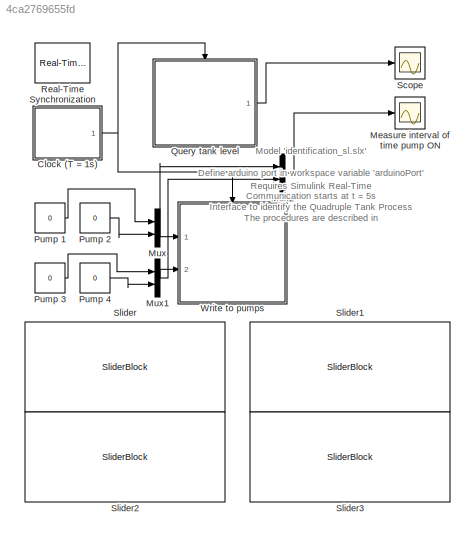
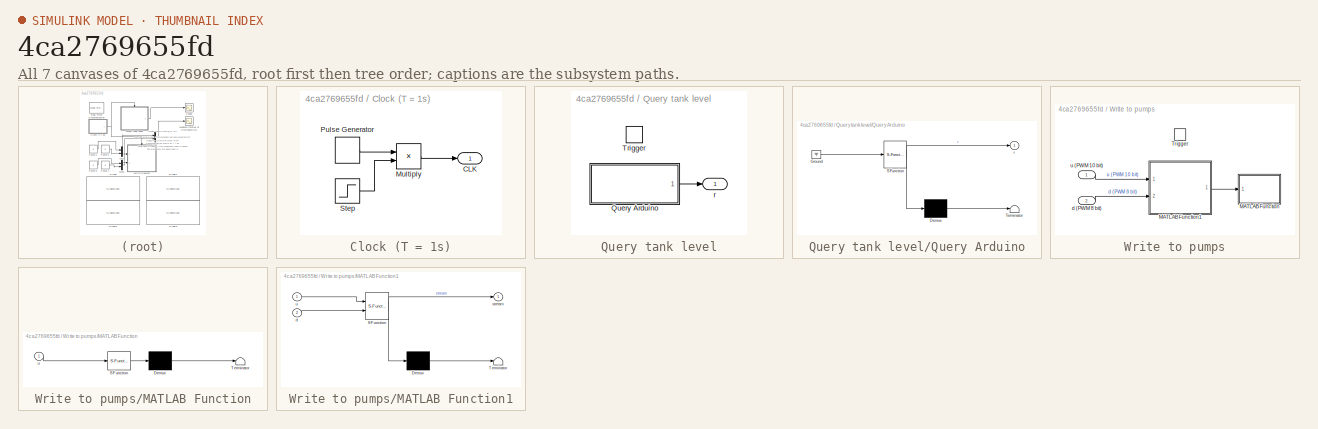
[diagram: thumbnail index - all 7 canvases of the model, root first then tree order]
MODEL slx_4ca2769655fd
KIND model
CONFIG AbsTol = auto
CONFIG EnableMultiTasking = off
CONFIG FixedStep = 0.5
CONFIG MaxStep = auto
CONFIG MinStep = auto
CONFIG RelTol = 1e-3
CONFIG SampleTimeConstraint = Unconstrained
CONFIG SolverName = FixedStepDiscrete
CONFIG StartTime = 0.0
CONFIG StopTime = inf
BLOCK [SubSystem] Clock (T = 1s)
  Ports = [0, 1]
  RequestExecContextInheritance = off
BLOCK [Outport] Clock (T = 1s)/CLK 
  VectorParamsAs1DForOutWhenUnconnected = off
BLOCK [Product] Clock (T = 1s)/Multiply
  Ports = [2, 1]
BLOCK [DiscretePulseGenerator] Clock (T = 1s)/Pulse Generator
  Period = 1
  Ports = [0, 1]
  PulseType = Time based
  PulseWidth = 50
BLOCK [Step] Clock (T = 1s)/Step
  SampleTime = 0
  Time = 5
BLOCK [Scope] Measure interval of time pump ON
  Floating = off
  NumInputPorts = 1
  Ports = [1]
  ScopeSpecificationString = Simulink.scopes.TimeScopeBlockCfg('CurrentConfiguration', extmgr.ConfigurationSet(extmgr.Configuration('Core','General UI',true),extmgr.Configuration('Core','Source UI',true),extmgr.Configuration('Sources','WiredSimulink',true,'DataLoggingVariableName','ScopeData1'),extmgr.Configuration('Visuals','Time Domain',true,'SerializedDisplays',{struct('MinYLimReal','-20','MaxYLimReal','1040','YLabelReal',...<+1852ch>
BLOCK [Mux] Mux
  DisplayOption = bar
  Inputs = 2
  Ports = [2, 1]
BLOCK [Mux] Mux1
  DisplayOption = bar
  Inputs = 2
  Ports = [2, 1]
BLOCK [Mux] Mux2
  DisplayOption = bar
  Inputs = 2
  Ports = [2, 1]
BLOCK [Constant] Pump 1
  Value = 0
BLOCK [Constant] Pump 2 
  Value = 0
BLOCK [Constant] Pump 3
  Value = 0
BLOCK [Constant] Pump 4
  Value = 0
BLOCK [SubSystem] Query tank level
  InitFcn = if exist('arduinoPort')\nif ~isempty(instrfind)\nfclose(instrfind);\ndelete(instrfind);\nend\narduino = serial(arduinoPort,...\n                'BaudRate',9600,...\n                'ByteOrder','bigEndian',...\n                'DataBits',8,...\n                'StopBits',1,...\n                'Terminator','');\narduino.Parity = 'none';\nfopen(arduino);\nelse\nerror("Error: Arduino port undefined. Define the por...<+45ch>
  Ports = [0, 1, 0, 1]
  Priority = 1
  RequestExecContextInheritance = off
  StopFcn = fclose(arduino)
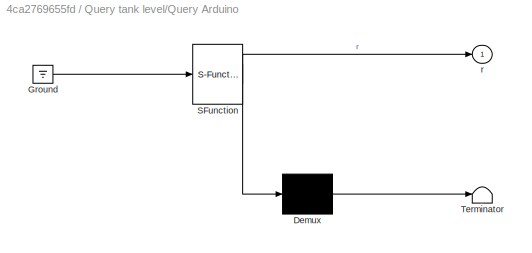
BLOCK [SubSystem] Query tank level/Query Arduino
  ErrorFcn = Stateflow.Translate.translate
  PermitHierarchicalResolution = ExplicitOnly
  Ports = [0, 1]
  RequestExecContextInheritance = off
  SFBlockType = MATLAB Function
  TreatAsAtomicUnit = on
BLOCK [Demux] Query tank level/Query Arduino/ Demux 
  Outputs = 1
  Ports = [1, 1]
BLOCK [Ground] Query tank level/Query Arduino/ Ground 
BLOCK [S-Function] Query tank level/Query Arduino/ SFunction 
  EnableBusSupport = on
  FunctionName = sf_sfun
  PortCounts = [1 2]
  Ports = [1, 2]
  SFcnIsStateOwnerBlock = off
  SFunctionDeploymentMode = off
  Tag = Stateflow S-Function 2
BLOCK [Terminator] Query tank level/Query Arduino/ Terminator 
BLOCK [Outport] Query tank level/Query Arduino/r
  VectorParamsAs1DForOutWhenUnconnected = off
BLOCK [TriggerPort] Query tank level/Trigger
  PortDimensions = 1
  Ports = []
  StatesWhenEnabling = held
  VariantControl = Variant
BLOCK [Outport] Query tank level/r
  VectorParamsAs1DForOutWhenUnconnected = off
BLOCK [Reference] Real-Time Synchronization  REF=sldrtlib/Real-Time
Synchronization
  Ports = []
  SourceBlock = sldrtlib/Real-Time\nSynchronization
  SourceProductBaseCode = WT
  SourceType = Simulink Desktop Real-Time Synchronization
BLOCK [Scope] Scope
  Floating = off
  NumInputPorts = 1
  Ports = [1]
  ScopeSpecificationString = Simulink.scopes.TimeScopeBlockCfg('CurrentConfiguration', extmgr.ConfigurationSet(extmgr.Configuration('Core','General UI',true),extmgr.Configuration('Core','Source UI',true),extmgr.Configuration('Sources','WiredSimulink',true),extmgr.Configuration('Visuals','Time Domain',true,'SerializedDisplays',{struct('MinYLimReal','0.2','MaxYLimReal','1.1','YLabelReal','R_sense/R_ref','MinYLimMag','0.00000','...<+1587ch>
BLOCK [SliderBlock] Slider
  ScaleMax = 1023
BLOCK [SliderBlock] Slider1
  ScaleMax = 1023
BLOCK [SliderBlock] Slider2
  ScaleMax = 255
BLOCK [SliderBlock] Slider3
  ScaleMax = 255
BLOCK [SubSystem] Write to pumps
  Ports = [2, 0, 0, 1]
  Priority = 2
  RequestExecContextInheritance = off
BLOCK [SubSystem] Write to pumps/MATLAB Function
  ErrorFcn = Stateflow.Translate.translate
  PermitHierarchicalResolution = ExplicitOnly
  Ports = [1]
  RequestExecContextInheritance = off
  SFBlockType = MATLAB Function
  TreatAsAtomicUnit = on
BLOCK [Demux] Write to pumps/MATLAB Function/ Demux 
  Outputs = 1
  Ports = [1, 1]
BLOCK [S-Function] Write to pumps/MATLAB Function/ SFunction 
  EnableBusSupport = on
  FunctionName = sf_sfun
  PortCounts = [1 1]
  Ports = [1, 1]
  SFcnIsStateOwnerBlock = off
  SFunctionDeploymentMode = off
  Tag = Stateflow S-Function 1
BLOCK [Terminator] Write to pumps/MATLAB Function/ Terminator 
BLOCK [Inport] Write to pumps/MATLAB Function/u
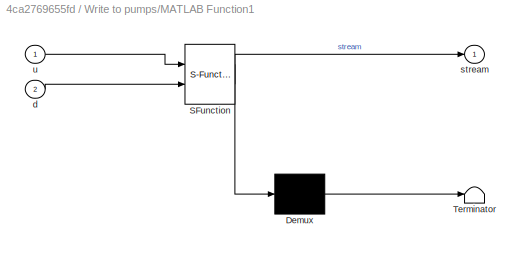
BLOCK [SubSystem] Write to pumps/MATLAB Function1
  ErrorFcn = Stateflow.Translate.translate
  PermitHierarchicalResolution = ExplicitOnly
  Ports = [2, 1]
  RequestExecContextInheritance = off
  SFBlockType = MATLAB Function
  TreatAsAtomicUnit = on
BLOCK [Demux] Write to pumps/MATLAB Function1/ Demux 
  Outputs = 1
  Ports = [1, 1]
BLOCK [S-Function] Write to pumps/MATLAB Function1/ SFunction 
  EnableBusSupport = on
  FunctionName = sf_sfun
  PortCounts = [2 2]
  Ports = [2, 2]
  SFcnIsStateOwnerBlock = off
  SFunctionDeploymentMode = off
  Tag = Stateflow S-Function 4
BLOCK [Terminator] Write to pumps/MATLAB Function1/ Terminator 
BLOCK [Inport] Write to pumps/MATLAB Function1/d
  Port = 2
BLOCK [Outport] Write to pumps/MATLAB Function1/stream
  VectorParamsAs1DForOutWhenUnconnected = off
BLOCK [Inport] Write to pumps/MATLAB Function1/u
BLOCK [TriggerPort] Write to pumps/Trigger
  PortDimensions = 1
  Ports = []
  StatesWhenEnabling = held
  VariantControl = Variant
BLOCK [Inport] Write to pumps/d (PWM 8 bit)
  NameLocation = top
  Port = 2
BLOCK [Inport] Write to pumps/u (PWM 10 bit)
  NameLocation = top
ANNOTATION (root): Model ' identification_sl.slx ' Requires Simulink Real-Time Define arduino port in workspace variable 'arduinoPort' Communication starts at t = 5s Interface to identify the Quadruple Tank Process The procedures are described in - ' identification_1_A.mlx ' - ' identification_2_dh_dr.mlx ' - ' identification_3_pump.mlx ' - ' identification_4_a.mlx '
LINE Clock (T = 1s)/Multiply:1 -> Clock (T = 1s)/CLK :1
LINE Clock (T = 1s)/Pulse Generator:1 -> Clock (T = 1s)/Multiply:1
LINE Clock (T = 1s)/Step:1 -> Clock (T = 1s)/Multiply:2
NET Clock (T = 1s):1 -> Query tank level:trigger, Write to pumps:trigger
NET Mux1:1 -> Mux2:2, Write to pumps:2
LINE Mux2:1 -> Measure interval of time pump ON:1
NET Mux:1 -> Mux2:1, Write to pumps:1
LINE Pump 1:1 -> Mux:1
LINE Pump 2 :1 -> Mux:2
LINE Pump 3:1 -> Mux1:1
LINE Pump 4:1 -> Mux1:2
LINE Query tank level/Query Arduino:1 -> Query tank level/r:1
LINE Query tank level:1 -> Scope:1
LINE Write to pumps/MATLAB Function1:1 -> Write to pumps/MATLAB Function:1
LINE Write to pumps/d (PWM 8 bit):1 -> Write to pumps/MATLAB Function1:2
LINE Write to pumps/u (PWM 10 bit):1 -> Write to pumps/MATLAB Function1:1
note: NET lines group one-source signal fan-out (src -> all destinations, sorted); 1:1 wires keep LINE
CHART Write to pumps/MATLAB Function states=1 transitions=1
  STATE_LABEL 'eML_blk_kernel()'
  STATE_LABEL 'SCRIPT:\nfunction toArduino(u)\n% Find arduino serial object\ncoder.extrinsic(\'instrfind\'); \npersistent arduino;\nif isempty(arduino)\n    arduino = instrfind(\'Status\',\'open\',\'Baud\',9600);\nend\n% Send metadata\nfprintf(arduino, "#16");\n% Send actuation inputs\nfwrite(arduino,u,\'uint16\');\nend\n'
CHART Query tank level/Query Arduino states=1 transitions=1
  STATE_LABEL 'eML_blk_kernel()'
  STATE_LABEL "SCRIPT:\nfunction r = queryArduino()\n% Find arduino serial object\ncoder.extrinsic('instrfind'); \npersistent arduino;\nif isempty(arduino)\n    arduino = instrfind('Status','open','Baud',9600);\nend\n\n% Query arduino\nfprintf(arduino, '$');\n% Ignore metadata\nfread(arduino,[4 1],'uint8');\n% Read water-level data\naux = fread(arduino,[5 1],'uint16');\nu = zeros(5,1);\nu(5) = double(aux(5,1));\nfor i = 1:4\n    ...<+74ch>"
CHART Write to pumps/MATLAB Function1 states=1 transitions=1
  STATE_LABEL 'eML_blk_kernel()'
  STATE_LABEL 'SCRIPT:\nfunction stream = packPWM10bit(u,d)\n    %% Saturation \n    u(u<0) = 0;\n    u(u>2^10-1) =2^10-1;\n    d(d<0) = 0;\n    d(d>2^8-1) =2^8-1;\n    %% Pack PWM \n    stream = uint16(zeros(3,1));\n    % First two actuation pump signals of 10 bits are sent individually\n    stream(1:2) = uint16(round(u)); \n    % Two disturbance pump signals of 8 bits are sent together as a 16 bit\n    % uint16_t\n    stre...<+53ch>'
CHART  states=0 transitions=0
CHART  states=0 transitions=0
CHART  states=0 transitions=0
